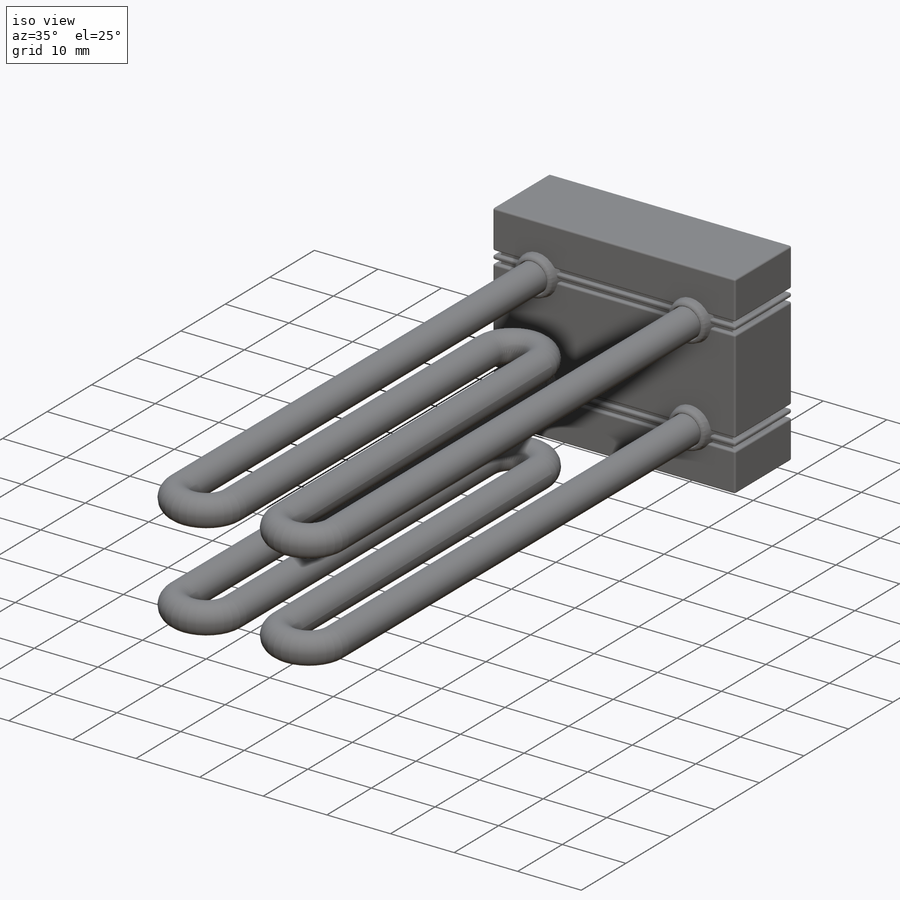
[diagram: iso view]
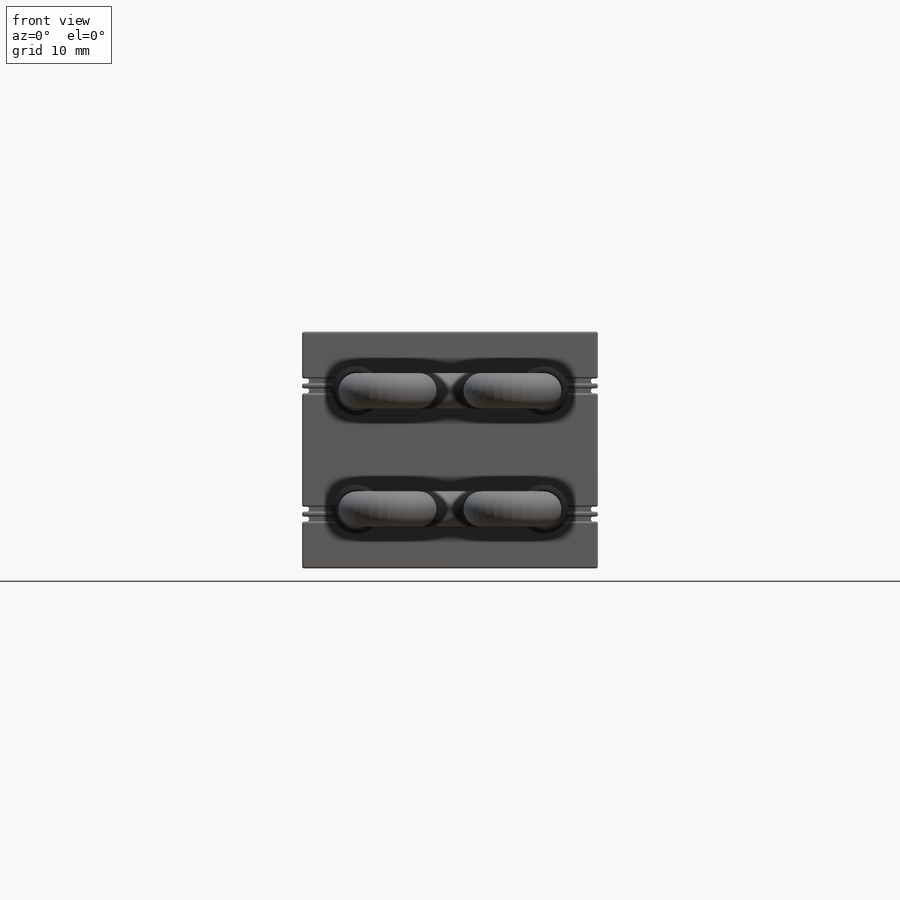
[diagram: front view]
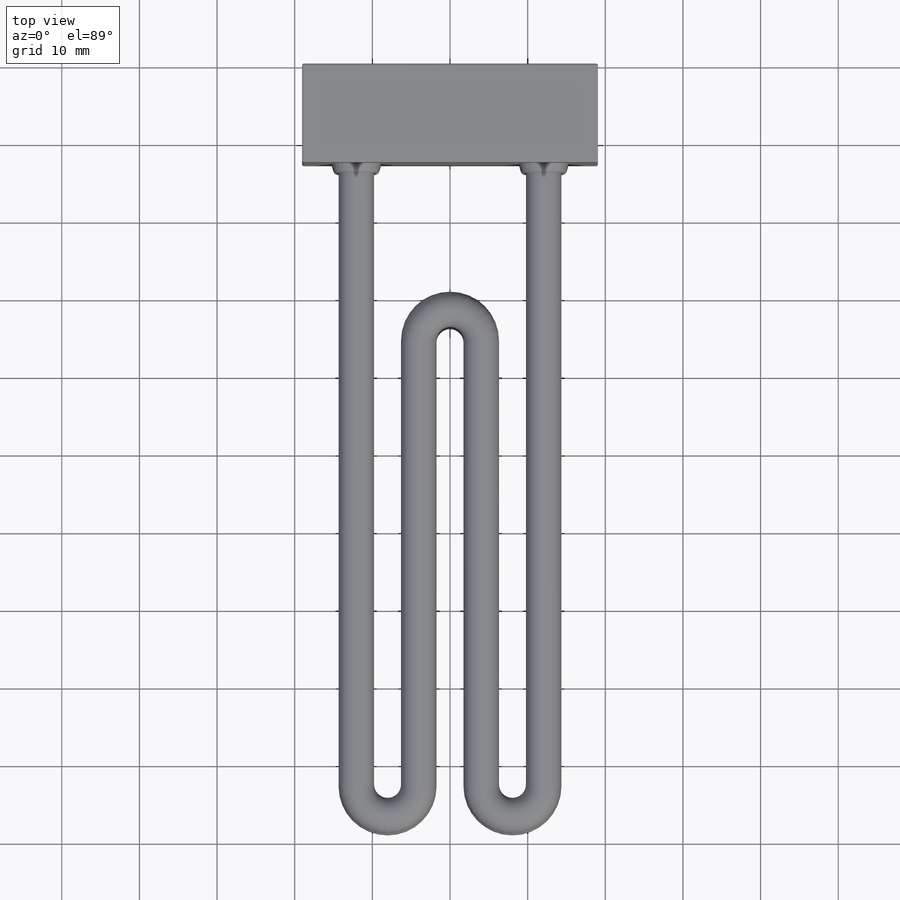
[diagram: top view]
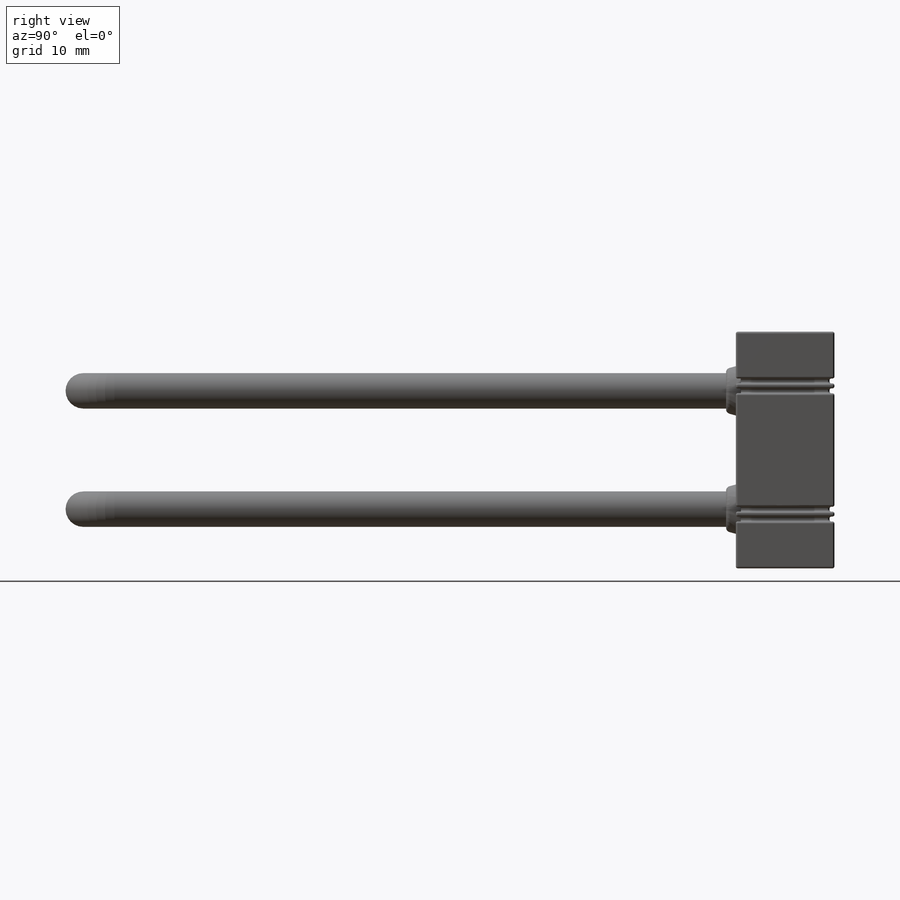
[diagram: right view]
SOLIDWORKS PART (.sldprt)
format: sldprt  version: not decoded by parser v0  size: 781,312 bytes
history: native  units: mm
features: sketch x6, fillet x3, extrude x2, plane x2, cut_extrude x2, material x1, pattern_linear x1, mirror x1, sweep x1 (+13 scaffold rows collapsed)
feature tree (32):
  scaffold x13  (default folders/planes/origin — collapsed)
  material  "Material <not specified>"
  sketch  "Sketch1"  dims[D1=30.48mm D2=38.1mm]
  extrude  "Boss-Extrude1"  Depth=12.7mm
  plane  "Plane1"  Offset=6.35mm
  sketch  "Sketch2"  dims[D1=0.635mm D2=0.635mm D3=0.889mm D4=0.889mm]
  cut_extrude  "Cut-Extrude1"  Depth=0.635mm
  pattern_linear  "LPattern1"  Count1=2 Count2=1 Spacing1=1.27mm Spacing2=2.54mm
  mirror  "Mirror1"
  fillet  "Fillet1"  Radius=0.254mm
  sketch  "Sketch3"  dims[D1=6.35mm D2=15.24mm D3=24.13mm]
  extrude  "Boss-Extrude2"  Depth=1.27mm
  fillet  "Fillet2"  Radius=0.635mm
  sketch  "Sketch4"
  cut_extrude  "Cut-Extrude2"  Depth=6.35mm
  fillet  "Fillet3"  Radius=0.127mm
  sketch  "Sketch5"  dims[D1=0.0635mm]
  plane  "Plane2"
  sketch  "Sketch6"  dims[c1.D2=~4.021667mm c1.D1=102.87mm c2.D2=10.16mm c2.D3=57.15mm]
  sweep  "Sweep1"
decode coverage: 13 of 16 modeling features carry decoded parameters
note: ~ marks probable driven/reference dimensions
note: suppression state not decoded; provenance and decode notes live in map.json
